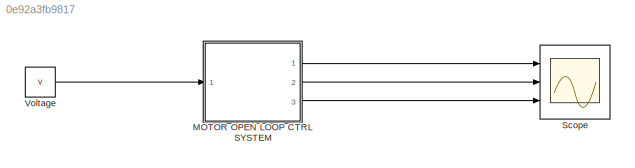
MODEL slx_0e92a3fb9817
KIND model
CONFIG AbsTol = auto
CONFIG EnableMultiTasking = off
CONFIG FixedStep = auto
CONFIG MaxStep = auto
CONFIG MinStep = auto
CONFIG RelTol = 1e-3
CONFIG SampleTimeConstraint = Unconstrained
CONFIG SolverName = VariableStepAuto
CONFIG StartTime = 0.0
CONFIG StopTime = 10.0
WORKSPACE source: mxarray member
WORKSPACE B = 0.01
WORKSPACE R = 0.5
WORKSPACE Tb = 20
WORKSPACE V = 160
WORKSPACE kb = 1.6
WORKSPACE kt = 1.6
WORKSPACE tau_a = 0.2
WORKSPACE tau_m = 500
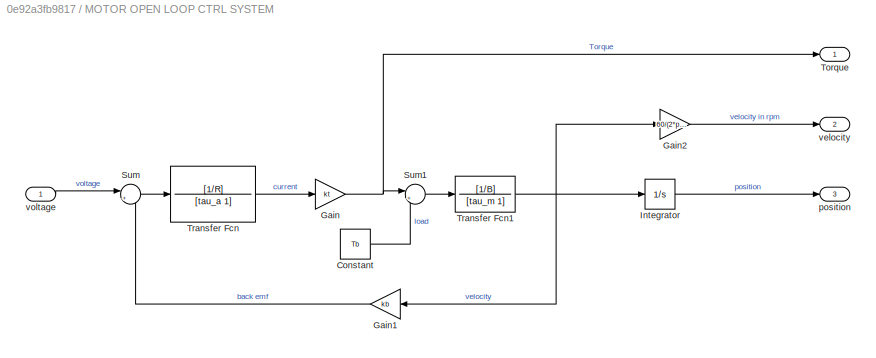
BLOCK [SubSystem] MOTOR OPEN LOOP CTRL SYSTEM
  Ports = [1, 3]
  RequestExecContextInheritance = off
BLOCK [Constant] MOTOR OPEN LOOP CTRL SYSTEM/Constant
  Value = Tb
BLOCK [Gain] MOTOR OPEN LOOP CTRL SYSTEM/Gain
  Gain = kt
BLOCK [Gain] MOTOR OPEN LOOP CTRL SYSTEM/Gain1
  Gain = kb
BLOCK [Gain] MOTOR OPEN LOOP CTRL SYSTEM/Gain2
  Gain = 60/(2*pi)
BLOCK [Integrator] MOTOR OPEN LOOP CTRL SYSTEM/Integrator
  Ports = [1, 1]
BLOCK [Sum] MOTOR OPEN LOOP CTRL SYSTEM/Sum
  Inputs = |+-
  Ports = [2, 1]
BLOCK [Sum] MOTOR OPEN LOOP CTRL SYSTEM/Sum1
  Inputs = |+-
  Ports = [2, 1]
BLOCK [Outport] MOTOR OPEN LOOP CTRL SYSTEM/Torque
BLOCK [TransferFcn] MOTOR OPEN LOOP CTRL SYSTEM/Transfer Fcn
  Denominator = [tau_a 1]
  Numerator = [1/R]
BLOCK [TransferFcn] MOTOR OPEN LOOP CTRL SYSTEM/Transfer Fcn1
  Denominator = [tau_m 1]
  Numerator = [1/B]
BLOCK [Outport] MOTOR OPEN LOOP CTRL SYSTEM/position
  Port = 3
BLOCK [Outport] MOTOR OPEN LOOP CTRL SYSTEM/velocity
  Port = 2
BLOCK [Inport] MOTOR OPEN LOOP CTRL SYSTEM/voltage
BLOCK [Scope] Scope
  Floating = off
  NumInputPorts = 3
  Ports = [3]
  ScopeSpecificationString = Simulink.scopes.TimeScopeBlockCfg('CurrentConfiguration', extmgr.ConfigurationSet(extmgr.Configuration('Core','General UI',true),extmgr.Configuration('Core','Source UI',true),extmgr.Configuration('Sources','WiredSimulink',true),extmgr.Configuration('Visuals','Time Domain',true,'SerializedDisplays',{struct('MinYLimReal','-49.12229','MaxYLimReal','442.10059','YLabelReal','Nm','MinYLimMag','382.65094...<+2997ch>
BLOCK [Constant] Voltage
  Value = V
LINE MOTOR OPEN LOOP CTRL SYSTEM/Constant:1 -> MOTOR OPEN LOOP CTRL SYSTEM/Sum1:2
LINE MOTOR OPEN LOOP CTRL SYSTEM/Gain1:1 -> MOTOR OPEN LOOP CTRL SYSTEM/Sum:2
LINE MOTOR OPEN LOOP CTRL SYSTEM/Gain2:1 -> MOTOR OPEN LOOP CTRL SYSTEM/velocity:1
NET MOTOR OPEN LOOP CTRL SYSTEM/Gain:1 -> MOTOR OPEN LOOP CTRL SYSTEM/Sum1:1, MOTOR OPEN LOOP CTRL SYSTEM/Torque:1
LINE MOTOR OPEN LOOP CTRL SYSTEM/Integrator:1 -> MOTOR OPEN LOOP CTRL SYSTEM/position:1
LINE MOTOR OPEN LOOP CTRL SYSTEM/Sum1:1 -> MOTOR OPEN LOOP CTRL SYSTEM/Transfer Fcn1:1
LINE MOTOR OPEN LOOP CTRL SYSTEM/Sum:1 -> MOTOR OPEN LOOP CTRL SYSTEM/Transfer Fcn:1
NET MOTOR OPEN LOOP CTRL SYSTEM/Transfer Fcn1:1 -> MOTOR OPEN LOOP CTRL SYSTEM/Gain1:1, MOTOR OPEN LOOP CTRL SYSTEM/Gain2:1, MOTOR OPEN LOOP CTRL SYSTEM/Integrator:1
LINE MOTOR OPEN LOOP CTRL SYSTEM/Transfer Fcn:1 -> MOTOR OPEN LOOP CTRL SYSTEM/Gain:1
LINE MOTOR OPEN LOOP CTRL SYSTEM/voltage:1 -> MOTOR OPEN LOOP CTRL SYSTEM/Sum:1
LINE MOTOR OPEN LOOP CTRL SYSTEM:1 -> Scope:1
LINE MOTOR OPEN LOOP CTRL SYSTEM:2 -> Scope:2
LINE MOTOR OPEN LOOP CTRL SYSTEM:3 -> Scope:3
LINE Voltage:1 -> MOTOR OPEN LOOP CTRL SYSTEM:1
note: NET lines group one-source signal fan-out (src -> all destinations, sorted); 1:1 wires keep LINE
